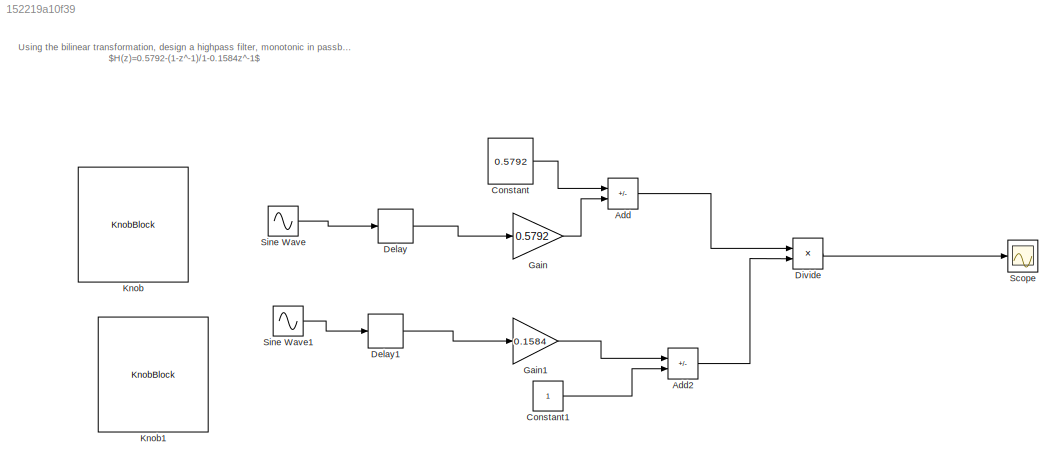
MODEL slx_152219a10f39
KIND model
CONFIG AbsTol = auto
CONFIG EnableMultiTasking = off
CONFIG FixedStep = auto
CONFIG MaxStep = auto
CONFIG MinStep = auto
CONFIG RelTol = 1e-3
CONFIG SampleTimeConstraint = Unconstrained
CONFIG SolverName = VariableStepAuto
CONFIG StartTime = 0.0
CONFIG StopTime = 10.0
BLOCK [Sum] Add
  IconShape = rectangular
  Inputs = +-
  Ports = [2, 1]
BLOCK [Sum] Add2
  IconShape = rectangular
  Inputs = -+
  Ports = [2, 1]
BLOCK [Constant] Constant
  OutMin = 0.5792
  Value = 0.5792
BLOCK [Constant] Constant1
BLOCK [Delay] Delay
  DelayLength = 1
  InputPortMap = u0
  Ports = [1, 1]
BLOCK [Delay] Delay1
  DelayLength = 1
  InputPortMap = u0
  Ports = [1, 1]
BLOCK [Product] Divide
  Inputs = */
  Ports = [2, 1]
BLOCK [Gain] Gain
  Gain = 0.5792
BLOCK [Gain] Gain1
  Gain = 0.1584
BLOCK [KnobBlock] Knob
  ScaleMax = 1000
  ScaleMin = 100
BLOCK [KnobBlock] Knob1
BLOCK [Scope] Scope
  Floating = off
  NumInputPorts = 1
  Ports = [1]
  ScopeSpecificationString = Simulink.scopes.TimeScopeBlockCfg('CurrentConfiguration', extmgr.ConfigurationSet(extmgr.Configuration('Core','General UI',true),extmgr.Configuration('Core','Source UI',true),extmgr.Configuration('Sources','WiredSimulink',true),extmgr.Configuration('Visuals','Time Domain',true,'SerializedDisplays',{struct('MinYLimReal','-0.02307','MaxYLimReal','1.11367','YLabelReal','','MinYLimMag','0.00000','MaxY...<+1352ch>
BLOCK [Sin] Sine Wave
  Frequency = 100
  Ports = [0, 1]
  SampleTime = 0
BLOCK [Sin] Sine Wave1
  Frequency = 100
  Ports = [0, 1]
  SampleTime = 0
ANNOTATION (root): Using the bilinear transformation, design a highpass filter, monotonic in passband with cutoff frequency of 1000 Hz and down 10 dB at 350 Hz. The sampling frequency is 5000 Hz. Implement using basic building blocks. Show the derivation for this filter. Demonstrate the filter’s output for 5 different frequencies ranging from 100 Hz to 10000 Hz. Choose these frequencies smartly to demonstrate $H(z)=...<+29ch>
LINE Add2:1 -> Divide:2
LINE Add:1 -> Divide:1
LINE Constant1:1 -> Add2:2
LINE Constant:1 -> Add:1
LINE Delay1:1 -> Gain1:1
LINE Delay:1 -> Gain:1
LINE Divide:1 -> Scope:1
LINE Gain1:1 -> Add2:1
LINE Gain:1 -> Add:2
LINE Sine Wave1:1 -> Delay1:1
LINE Sine Wave:1 -> Delay:1
